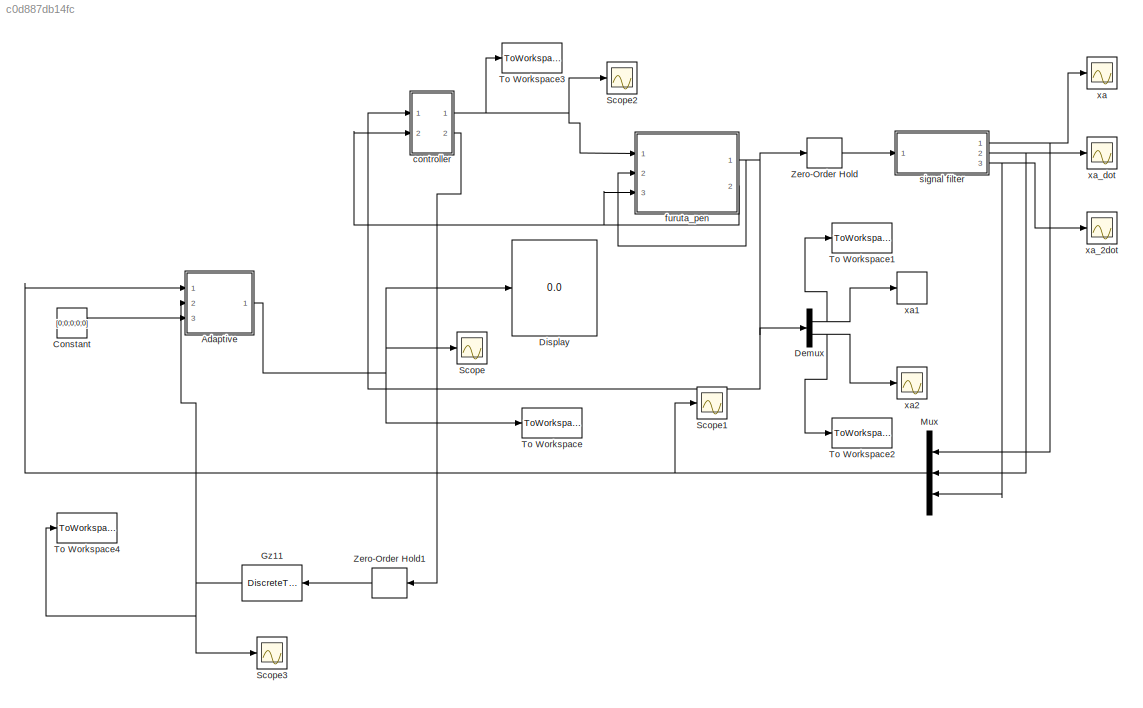
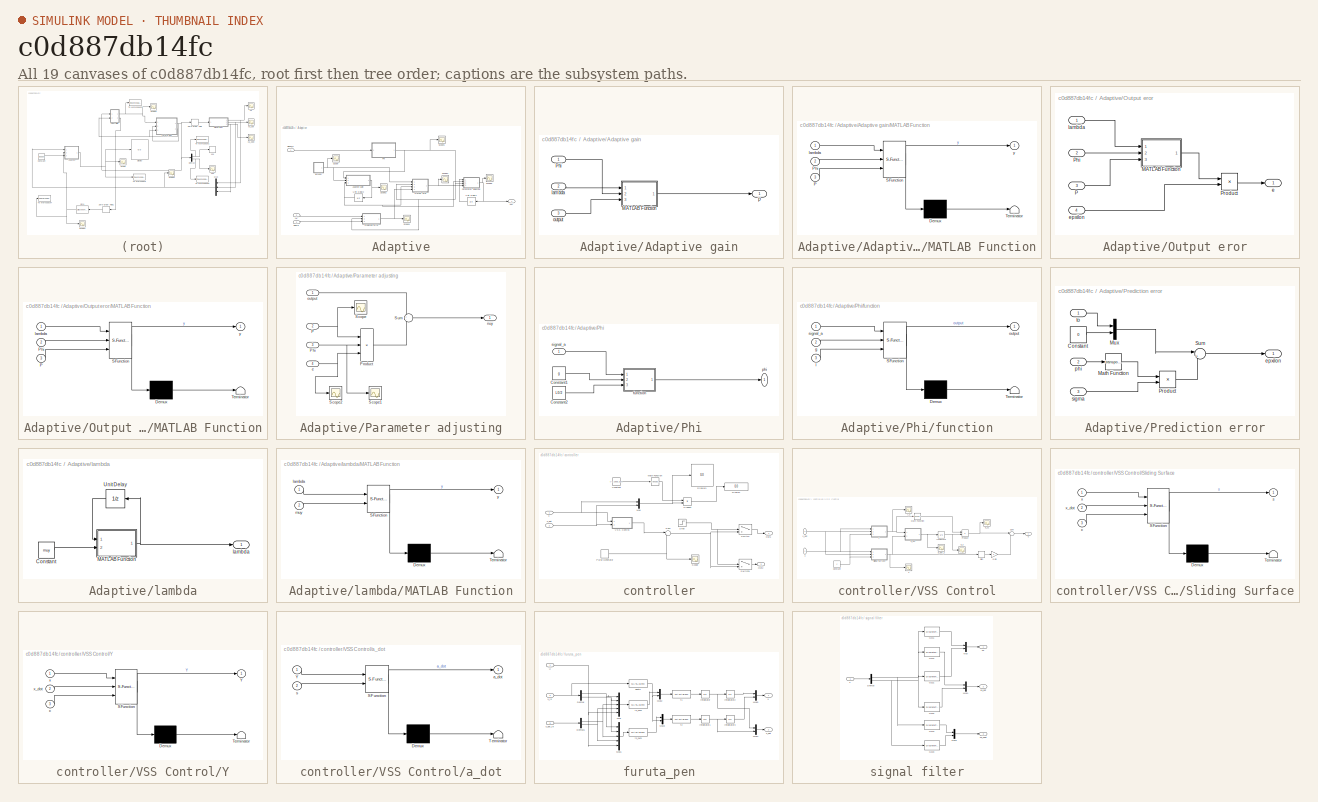
[diagram: thumbnail index - all 19 canvases of the model, root first then tree order]
MODEL slx_c0d887db14fc
KIND model
CONFIG AbsTol = auto
CONFIG FixedStep = 0.001
CONFIG MaxStep = auto
CONFIG MinStep = auto
CONFIG RelTol = 1e-3
CONFIG SampleTimeConstraint = Unconstrained
CONFIG Solver = ode3
CONFIG SolverMode = Auto
CONFIG SolverName = ode3
CONFIG StartTime = 0.0
CONFIG StopTime = 5
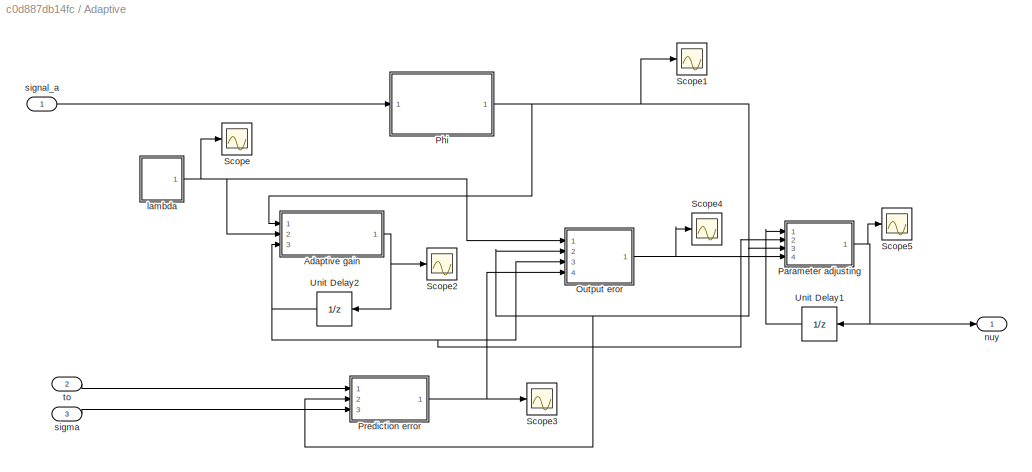
BLOCK [SubSystem] Adaptive
  Ports = [3, 1]
  RequestExecContextInheritance = off
BLOCK [SubSystem] Adaptive/Adaptive gain
  Ports = [3, 1]
  RequestExecContextInheritance = off
BLOCK [SubSystem] Adaptive/Adaptive gain/MATLAB Function
  ErrorFcn = Stateflow.Translate.translate
  PermitHierarchicalResolution = ExplicitOnly
  Ports = [3, 1]
  RequestExecContextInheritance = off
  SFBlockType = MATLAB Function
  TreatAsAtomicUnit = on
BLOCK [Demux] Adaptive/Adaptive gain/MATLAB Function/ Demux 
  Outputs = 1
  Ports = [1, 1]
BLOCK [S-Function] Adaptive/Adaptive gain/MATLAB Function/ SFunction 
  EnableBusSupport = on
  FunctionName = sf_sfun
  PortCounts = [3 2]
  Ports = [3, 2]
  Tag = Stateflow S-Function discrete 3
BLOCK [Terminator] Adaptive/Adaptive gain/MATLAB Function/ Terminator 
BLOCK [Inport] Adaptive/Adaptive gain/MATLAB Function/P
  IconDisplay = Port number
  Port = 3
BLOCK [Inport] Adaptive/Adaptive gain/MATLAB Function/Phi
  IconDisplay = Port number
  Port = 2
BLOCK [Inport] Adaptive/Adaptive gain/MATLAB Function/lambda
  IconDisplay = Port number
BLOCK [Outport] Adaptive/Adaptive gain/MATLAB Function/y
  IconDisplay = Port number
BLOCK [Outport] Adaptive/Adaptive gain/P
  IconDisplay = Port number
BLOCK [Inport] Adaptive/Adaptive gain/Phi
  IconDisplay = Port number
BLOCK [Inport] Adaptive/Adaptive gain/lambda
  IconDisplay = Port number
  Port = 2
BLOCK [Inport] Adaptive/Adaptive gain/output
  IconDisplay = Port number
  Port = 3
BLOCK [SubSystem] Adaptive/Output eror
  Ports = [4, 1]
  RequestExecContextInheritance = off
BLOCK [SubSystem] Adaptive/Output eror/MATLAB Function
  ErrorFcn = Stateflow.Translate.translate
  PermitHierarchicalResolution = ExplicitOnly
  Ports = [3, 1]
  RequestExecContextInheritance = off
  SFBlockType = MATLAB Function
  TreatAsAtomicUnit = on
BLOCK [Demux] Adaptive/Output eror/MATLAB Function/ Demux 
  Outputs = 1
  Ports = [1, 1]
BLOCK [S-Function] Adaptive/Output eror/MATLAB Function/ SFunction 
  EnableBusSupport = on
  FunctionName = sf_sfun
  PortCounts = [3 2]
  Ports = [3, 2]
  Tag = Stateflow S-Function discrete 1
BLOCK [Terminator] Adaptive/Output eror/MATLAB Function/ Terminator 
BLOCK [Inport] Adaptive/Output eror/MATLAB Function/P
  IconDisplay = Port number
  Port = 3
BLOCK [Inport] Adaptive/Output eror/MATLAB Function/Phi
  IconDisplay = Port number
  Port = 2
BLOCK [Inport] Adaptive/Output eror/MATLAB Function/lambda
  IconDisplay = Port number
BLOCK [Outport] Adaptive/Output eror/MATLAB Function/y
  IconDisplay = Port number
BLOCK [Inport] Adaptive/Output eror/P
  IconDisplay = Port number
  Port = 3
BLOCK [Inport] Adaptive/Output eror/Phi
  IconDisplay = Port number
  Port = 2
BLOCK [Product] Adaptive/Output eror/Product
  InputSameDT = off
  OutDataTypeStr = Inherit: Inherit via internal rule
  Ports = [2, 1]
  RndMeth = Floor
  SaturateOnIntegerOverflow = off
BLOCK [Outport] Adaptive/Output eror/e
  IconDisplay = Port number
BLOCK [Inport] Adaptive/Output eror/epxilon
  IconDisplay = Port number
  Port = 4
BLOCK [Inport] Adaptive/Output eror/lambda
  IconDisplay = Port number
BLOCK [SubSystem] Adaptive/Parameter adjusting
  Ports = [4, 1]
  RequestExecContextInheritance = off
BLOCK [Inport] Adaptive/Parameter adjusting/P
  IconDisplay = Port number
  Port = 2
BLOCK [Inport] Adaptive/Parameter adjusting/Phi
  IconDisplay = Port number
  Port = 3
BLOCK [Product] Adaptive/Parameter adjusting/Product
  InputSameDT = off
  Inputs = 3
  Multiplication = Matrix(*)
  OutDataTypeStr = Inherit: Inherit via internal rule
  Ports = [3, 1]
  RndMeth = Floor
  SaturateOnIntegerOverflow = off
BLOCK [Scope] Adaptive/Parameter adjusting/Scope
  Floating = off
  NumInputPorts = 1
  Ports = [1]
  SaveName = ScopeData17
BLOCK [Scope] Adaptive/Parameter adjusting/Scope1
  Floating = off
  NumInputPorts = 1
  Ports = [1]
  SaveName = ScopeData18
  YMax = 2.5
  YMin = -3.5
BLOCK [Scope] Adaptive/Parameter adjusting/Scope2
  Floating = off
  NumInputPorts = 1
  Ports = [1]
  SaveName = ScopeData19
  YMax = 7
  YMin = -4
BLOCK [Sum] Adaptive/Parameter adjusting/Sum
  IconShape = round
  InputSameDT = off
  Inputs = +-
  OutDataTypeStr = Inherit: Inherit via internal rule
  Ports = [2, 1]
  SaturateOnIntegerOverflow = off
BLOCK [Inport] Adaptive/Parameter adjusting/e
  IconDisplay = Port number
  Port = 4
BLOCK [Outport] Adaptive/Parameter adjusting/nuy
  IconDisplay = Port number
BLOCK [Inport] Adaptive/Parameter adjusting/output
  IconDisplay = Port number
BLOCK [SubSystem] Adaptive/Phi
  Ports = [1, 1]
  RequestExecContextInheritance = off
BLOCK [Constant] Adaptive/Phi/Constant1
  Value = g
BLOCK [Constant] Adaptive/Phi/Constant2
  Value = L0/2
BLOCK [SubSystem] Adaptive/Phi/function
  ErrorFcn = Stateflow.Translate.translate
  PermitHierarchicalResolution = ExplicitOnly
  Ports = [3, 1]
  RequestExecContextInheritance = off
  SFBlockType = MATLAB Function
  TreatAsAtomicUnit = on
BLOCK [Demux] Adaptive/Phi/function/ Demux 
  Outputs = 1
  Ports = [1, 1]
BLOCK [S-Function] Adaptive/Phi/function/ SFunction 
  EnableBusSupport = on
  FunctionName = sf_sfun
  PortCounts = [3 2]
  Ports = [3, 2]
  Tag = Stateflow S-Function discrete 2
BLOCK [Terminator] Adaptive/Phi/function/ Terminator 
BLOCK [Inport] Adaptive/Phi/function/g
  IconDisplay = Port number
  Port = 2
BLOCK [Inport] Adaptive/Phi/function/l
  IconDisplay = Port number
  Port = 3
BLOCK [Outport] Adaptive/Phi/function/output
  IconDisplay = Port number
BLOCK [Inport] Adaptive/Phi/function/signal_a
  IconDisplay = Port number
BLOCK [Outport] Adaptive/Phi/phi
  IconDisplay = Port number
BLOCK [Inport] Adaptive/Phi/signal_a
  IconDisplay = Port number
BLOCK [SubSystem] Adaptive/Prediction error
  Ports = [3, 1]
  RequestExecContextInheritance = off
BLOCK [Constant] Adaptive/Prediction error/Constant
  Value = 0
BLOCK [Math] Adaptive/Prediction error/Math Function
  Operator = transpose
  Ports = [1, 1]
BLOCK [Mux] Adaptive/Prediction error/Mux
  DisplayOption = bar
  Inputs = 2
  Ports = [2, 1]
BLOCK [Product] Adaptive/Prediction error/Product
  InputSameDT = off
  Multiplication = Matrix(*)
  OutDataTypeStr = Inherit: Inherit via internal rule
  Ports = [2, 1]
  RndMeth = Floor
  SaturateOnIntegerOverflow = off
BLOCK [Sum] Adaptive/Prediction error/Sum
  IconShape = round
  InputSameDT = off
  Inputs = |+-
  OutDataTypeStr = Inherit: Inherit via internal rule
  Ports = [2, 1]
  SaturateOnIntegerOverflow = off
BLOCK [Outport] Adaptive/Prediction error/epxilon
  IconDisplay = Port number
BLOCK [Inport] Adaptive/Prediction error/phi
  IconDisplay = Port number
  Port = 2
BLOCK [Inport] Adaptive/Prediction error/sigma
  IconDisplay = Port number
  Port = 3
BLOCK [Inport] Adaptive/Prediction error/to
  IconDisplay = Port number
BLOCK [Scope] Adaptive/Scope
  Floating = off
  NumInputPorts = 1
  Ports = [1]
  SaveName = ScopeData10
  YMax = 1
  YMin = 1
BLOCK [Scope] Adaptive/Scope1
  Floating = off
  NumInputPorts = 1
  Ports = [1]
  SaveName = ScopeData11
  TimeRange = 5
BLOCK [Scope] Adaptive/Scope2
  Floating = off
  NumInputPorts = 1
  Ports = [1]
  SaveName = ScopeData13
  YMax = 9.6e-06
  YMin = 8.6e-06
BLOCK [Scope] Adaptive/Scope3
  Floating = off
  NumInputPorts = 1
  Ports = [1]
  SaveName = ScopeData14
BLOCK [Scope] Adaptive/Scope4
  Floating = off
  NumInputPorts = 1
  Ports = [1]
  SaveName = ScopeData15
BLOCK [Scope] Adaptive/Scope5
  Floating = off
  NumInputPorts = 1
  Ports = [1]
  SaveName = ScopeData16
BLOCK [UnitDelay] Adaptive/Unit Delay1
  InitialCondition = [1;1;1;1;1]
  InputProcessing = Elements as channels (sample based)
  SampleTime = 0.001
BLOCK [UnitDelay] Adaptive/Unit Delay2
  InitialCondition = eye(5)
  InputProcessing = Elements as channels (sample based)
  SampleTime = 0.001
BLOCK [SubSystem] Adaptive/lambda
  Ports = [0, 1]
  RequestExecContextInheritance = off
BLOCK [Constant] Adaptive/lambda/Constant
  Value = muy
BLOCK [SubSystem] Adaptive/lambda/MATLAB Function
  ErrorFcn = Stateflow.Translate.translate
  PermitHierarchicalResolution = ExplicitOnly
  Ports = [2, 1]
  RequestExecContextInheritance = off
  SFBlockType = MATLAB Function
  TreatAsAtomicUnit = on
BLOCK [Demux] Adaptive/lambda/MATLAB Function/ Demux 
  Outputs = 1
  Ports = [1, 1]
BLOCK [S-Function] Adaptive/lambda/MATLAB Function/ SFunction 
  EnableBusSupport = on
  FunctionName = sf_sfun
  PortCounts = [2 2]
  Ports = [2, 2]
  Tag = Stateflow S-Function discrete 4
BLOCK [Terminator] Adaptive/lambda/MATLAB Function/ Terminator 
BLOCK [Inport] Adaptive/lambda/MATLAB Function/lambda
  IconDisplay = Port number
BLOCK [Inport] Adaptive/lambda/MATLAB Function/muy
  IconDisplay = Port number
  Port = 2
BLOCK [Outport] Adaptive/lambda/MATLAB Function/y
  IconDisplay = Port number
BLOCK [UnitDelay] Adaptive/lambda/Unit Delay
  InputProcessing = Elements as channels (sample based)
  SampleTime = -1
BLOCK [Outport] Adaptive/lambda/lambda
  IconDisplay = Port number
BLOCK [Outport] Adaptive/nuy
  IconDisplay = Port number
BLOCK [Inport] Adaptive/sigma
  IconDisplay = Port number
  Port = 3
BLOCK [Inport] Adaptive/signal_a
  IconDisplay = Port number
BLOCK [Inport] Adaptive/to
  IconDisplay = Port number
  Port = 2
BLOCK [Constant] Constant
  Value = [0;0;0;0;0]
BLOCK [Demux] Demux
  DisplayOption = bar
  Outputs = 2
  Ports = [1, 2]
BLOCK [Display] Display
  Decimation = 1
  Ports = [1]
BLOCK [DiscreteTransferFcn] Gz11
  Denominator = [1,-2.90163934426229,2.80650362805697,-0.904829038553887]
  InputPortMap = u0
  Numerator = [4.40565509888493e-06,1.32169652966548e-05,1.32169652966548e-05,4.40565509888493e-06]
  Ports = [1, 1]
  SampleTime = 0.001
BLOCK [Mux] Mux
  DisplayOption = bar
  Inputs = 3
  Ports = [3, 1]
BLOCK [Scope] Scope
  Floating = off
  NumInputPorts = 1
  Ports = [1]
  SaveName = ScopeData3
  TimeRange = 5
  YMax = 200000
  YMin = -600000
BLOCK [Scope] Scope1
  Floating = off
  NumInputPorts = 1
  Ports = [1]
  SaveName = ScopeData9
  YMax = 2
  YMin = -6
BLOCK [Scope] Scope2
  Floating = off
  NumInputPorts = 1
  Ports = [1]
  SaveName = ScopeData12
BLOCK [Scope] Scope3
  Floating = off
  NumInputPorts = 1
  Ports = [1]
  SaveName = ScopeData23
BLOCK [ToWorkspace] To Workspace
  FixptAsFi = on
  MaxDataPoints = inf
  Ports = [1]
  SampleTime = -1
  Save2DSignal = 3-D array (concatenate along third dimension)
  SaveFormat = Timeseries
  VariableName = simout
BLOCK [ToWorkspace] To Workspace1
  FixptAsFi = on
  MaxDataPoints = inf
  Ports = [1]
  SampleTime = -1
  Save2DSignal = 3-D array (concatenate along third dimension)
  SaveFormat = Timeseries
  VariableName = theta
BLOCK [ToWorkspace] To Workspace2
  FixptAsFi = on
  MaxDataPoints = inf
  Ports = [1]
  SampleTime = -1
  Save2DSignal = 3-D array (concatenate along third dimension)
  SaveFormat = Timeseries
  VariableName = alpha
BLOCK [ToWorkspace] To Workspace3
  FixptAsFi = on
  MaxDataPoints = inf
  Ports = [1]
  SampleTime = -1
  Save2DSignal = 3-D array (concatenate along third dimension)
  SaveFormat = Timeseries
  VariableName = u
BLOCK [ToWorkspace] To Workspace4
  FixptAsFi = on
  MaxDataPoints = inf
  Ports = [1]
  SampleTime = -1
  Save2DSignal = 3-D array (concatenate along third dimension)
  SaveFormat = Timeseries
  VariableName = ua
BLOCK [ZeroOrderHold] Zero-Order Hold
  SampleTime = 0.001
BLOCK [ZeroOrderHold] Zero-Order Hold1
  SampleTime = 0.001
BLOCK [SubSystem] controller
  Ports = [2, 2]
  RequestExecContextInheritance = off
BLOCK [Constant] controller/Constant
  Value = [-0.2500,20.6329,-0.6179,2.5406]
BLOCK [Display] controller/Display
  Decimation = 1
  Ports = [1]
BLOCK [Display] controller/Display1
  Decimation = 1
  Ports = [1]
BLOCK [Math] controller/Math Function
  Operator = transpose
  Ports = [1, 1]
BLOCK [Mux] controller/Mux
  DisplayOption = bar
  Inputs = 2
  Ports = [2, 1]
BLOCK [Outport] controller/Out1
  IconDisplay = Port number
BLOCK [Outport] controller/Out2
  IconDisplay = Port number
  Port = 2
BLOCK [Product] controller/Product
  InputSameDT = off
  Multiplication = Matrix(*)
  OutDataTypeStr = Inherit: Inherit via internal rule
  Ports = [2, 1]
  RndMeth = Floor
  SaturateOnIntegerOverflow = off
BLOCK [DiscretePulseGenerator] controller/Pulse Generator
  Amplitude = 0
  Period = 1
  Ports = [0, 1]
  PulseType = Time based
  PulseWidth = 5
BLOCK [Scope] controller/Scope
  Floating = off
  NumInputPorts = 1
  Ports = [1]
  SaveName = ScopeData22
BLOCK [Step] controller/Step
  SampleTime = 0
  Time = 6
BLOCK [Sum] controller/Sum
  IconShape = round
  InputSameDT = off
  Inputs = |++
  OutDataTypeStr = Inherit: Inherit via internal rule
  Ports = [2, 1]
  SaturateOnIntegerOverflow = off
BLOCK [Switch] controller/Switch
  Criteria = u2 > Threshold
  InputSameDT = off
  SaturateOnIntegerOverflow = off
BLOCK [Switch] controller/Switch1
  Criteria = u2 > Threshold
  InputSameDT = off
  SaturateOnIntegerOverflow = off
BLOCK [SubSystem] controller/VSS Control
  Ports = [2, 1]
  RequestExecContextInheritance = off
BLOCK [Constant] controller/VSS Control/Constant
  Value = c
BLOCK [Gain] controller/VSS Control/Gain
  Gain = k
  OutDataTypeStr = Inherit: Inherit via internal rule
  ParamDataTypeStr = Inherit: Inherit via internal rule
  SaturateOnIntegerOverflow = off
BLOCK [Integrator] controller/VSS Control/Integrator
  InitialCondition = [0.5;0.5;0.5;0.5]
  Ports = [1, 1]
BLOCK [Math] controller/VSS Control/Math Function
  Operator = transpose
  Ports = [1, 1]
BLOCK [Product] controller/VSS Control/Product
  InputSameDT = off
  Multiplication = Matrix(*)
  OutDataTypeStr = Inherit: Inherit via internal rule
  Ports = [2, 1]
  RndMeth = Floor
  SaturateOnIntegerOverflow = off
BLOCK [Signum] controller/VSS Control/Sign
BLOCK [SubSystem] controller/VSS Control/Sliding Surface
  ErrorFcn = Stateflow.Translate.translate
  PermitHierarchicalResolution = ExplicitOnly
  Ports = [3, 1]
  RequestExecContextInheritance = off
  SFBlockType = MATLAB Function
  TreatAsAtomicUnit = on
BLOCK [Demux] controller/VSS Control/Sliding Surface/ Demux 
  Outputs = 1
  Ports = [1, 1]
BLOCK [S-Function] controller/VSS Control/Sliding Surface/ SFunction 
  EnableBusSupport = on
  FunctionName = sf_sfun
  PortCounts = [3 2]
  Ports = [3, 2]
  Tag = Stateflow S-Function discrete 5
BLOCK [Terminator] controller/VSS Control/Sliding Surface/ Terminator 
BLOCK [Inport] controller/VSS Control/Sliding Surface/c
  IconDisplay = Port number
  Port = 3
BLOCK [Outport] controller/VSS Control/Sliding Surface/s
  IconDisplay = Port number
BLOCK [Inport] controller/VSS Control/Sliding Surface/x
  IconDisplay = Port number
BLOCK [Inport] controller/VSS Control/Sliding Surface/x_dot
  IconDisplay = Port number
  Port = 2
BLOCK [Sum] controller/VSS Control/Sum
  IconShape = round
  InputSameDT = off
  Inputs = |+-
  OutDataTypeStr = Inherit: Inherit via internal rule
  Ports = [2, 1]
  SaturateOnIntegerOverflow = off
BLOCK [SubSystem] controller/VSS Control/Y
  ErrorFcn = Stateflow.Translate.translate
  PermitHierarchicalResolution = ExplicitOnly
  Ports = [3, 1]
  RequestExecContextInheritance = off
  SFBlockType = MATLAB Function
  TreatAsAtomicUnit = on
BLOCK [Demux] controller/VSS Control/Y/ Demux 
  Outputs = 1
  Ports = [1, 1]
BLOCK [S-Function] controller/VSS Control/Y/ SFunction 
  EnableBusSupport = on
  FunctionName = sf_sfun
  PortCounts = [3 2]
  Ports = [3, 2]
  Tag = Stateflow S-Function discrete 6
BLOCK [Terminator] controller/VSS Control/Y/ Terminator 
BLOCK [Outport] controller/VSS Control/Y/Y
  IconDisplay = Port number
BLOCK [Inport] controller/VSS Control/Y/c
  IconDisplay = Port number
  Port = 3
BLOCK [Inport] controller/VSS Control/Y/x
  IconDisplay = Port number
BLOCK [Inport] controller/VSS Control/Y/x_dot
  IconDisplay = Port number
  Port = 2
BLOCK [SubSystem] controller/VSS Control/a_dot
  ErrorFcn = Stateflow.Translate.translate
  PermitHierarchicalResolution = ExplicitOnly
  Ports = [2, 1]
  RequestExecContextInheritance = off
  SFBlockType = MATLAB Function
  TreatAsAtomicUnit = on
BLOCK [Demux] controller/VSS Control/a_dot/ Demux 
  Outputs = 1
  Ports = [1, 1]
BLOCK [S-Function] controller/VSS Control/a_dot/ SFunction 
  EnableBusSupport = on
  FunctionName = sf_sfun
  PortCounts = [2 2]
  Ports = [2, 2]
  Tag = Stateflow S-Function discrete 7
BLOCK [Terminator] controller/VSS Control/a_dot/ Terminator 
BLOCK [Inport] controller/VSS Control/a_dot/Y
  IconDisplay = Port number
BLOCK [Outport] controller/VSS Control/a_dot/a_dot
  IconDisplay = Port number
BLOCK [Inport] controller/VSS Control/a_dot/s
  IconDisplay = Port number
  Port = 2
BLOCK [Scope] controller/VSS Control/a_dot_s
  Floating = off
  LimitDataPoints = off
  NumInputPorts = 1
  Ports = [1]
  SaveName = ScopeData6
  YMax = 0.175
  YMin = -0.175
BLOCK [Scope] controller/VSS Control/a_s
  Floating = off
  LimitDataPoints = off
  NumInputPorts = 1
  Ports = [1]
  SaveName = ScopeData7
  YMax = 0.504
  YMin = 0.491
BLOCK [Scope] controller/VSS Control/a_s1
  Floating = off
  LimitDataPoints = off
  NumInputPorts = 1
  Ports = [1]
  SaveName = ScopeData8
  YMax = 0.504
  YMin = 0.491
BLOCK [Scope] controller/VSS Control/s
  Floating = off
  LimitDataPoints = off
  NumInputPorts = 1
  Ports = [1]
  SaveName = ScopeData5
  YMax = 0.175
  YMin = -0.175
BLOCK [Outport] controller/VSS Control/u
  IconDisplay = Port number
BLOCK [Inport] controller/VSS Control/x
  IconDisplay = Port number
BLOCK [Inport] controller/VSS Control/x_dot
  IconDisplay = Port number
  Port = 2
BLOCK [Scope] controller/VSS Control/y_s
  Floating = off
  LimitDataPoints = off
  NumInputPorts = 1
  Ports = [1]
  SaveName = ScopeData4
  YMax = 0.175
  YMin = -0.175
  ZoomMode = yonly
BLOCK [Inport] controller/x
  IconDisplay = Port number
BLOCK [Inport] controller/x_dot
  IconDisplay = Port number
  Port = 2
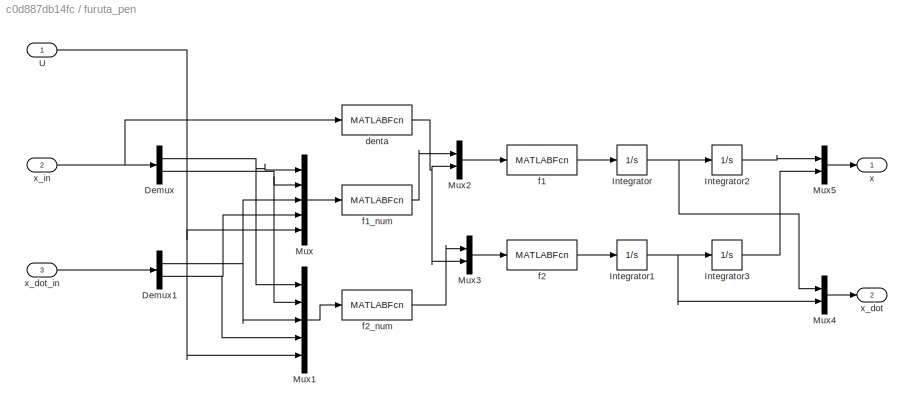
BLOCK [SubSystem] furuta_pen
  Ports = [3, 2]
  RequestExecContextInheritance = off
BLOCK [Demux] furuta_pen/Demux
  DisplayOption = bar
  Outputs = 2
  Ports = [1, 2]
BLOCK [Demux] furuta_pen/Demux1
  DisplayOption = bar
  Outputs = 2
  Ports = [1, 2]
BLOCK [Integrator] furuta_pen/Integrator
  Ports = [1, 1]
BLOCK [Integrator] furuta_pen/Integrator1
  Ports = [1, 1]
BLOCK [Integrator] furuta_pen/Integrator2
  InitialCondition = theta_0*pi/180
  Ports = [1, 1]
BLOCK [Integrator] furuta_pen/Integrator3
  InitialCondition = anpha_0/180*pi
  Ports = [1, 1]
BLOCK [Mux] furuta_pen/Mux
  DisplayOption = bar
  Inputs = 5
  Ports = [5, 1]
BLOCK [Mux] furuta_pen/Mux1
  DisplayOption = bar
  Inputs = 5
  Ports = [5, 1]
BLOCK [Mux] furuta_pen/Mux2
  DisplayOption = bar
  Inputs = 2
  Ports = [2, 1]
BLOCK [Mux] furuta_pen/Mux3
  DisplayOption = bar
  Inputs = 2
  Ports = [2, 1]
BLOCK [Mux] furuta_pen/Mux4
  DisplayOption = bar
  Inputs = 2
  Ports = [2, 1]
BLOCK [Mux] furuta_pen/Mux5
  DisplayOption = bar
  Inputs = 2
  Ports = [2, 1]
BLOCK [Inport] furuta_pen/U
  IconDisplay = Port number
BLOCK [MATLABFcn] furuta_pen/denta
  MATLABFcn = J0*J1+m1^2*L1^4*sin(u(2))^2+m1^2*L0^2*L1^2+J0*m1*L1^2+J1*m1*L0^2+J1*m1*L1^2*sin(u(2))^2-m1^2*L0^2*L1^2*cos(u(2))^2
  OutputDimensions = 1
  Ports = [1, 1]
BLOCK [MATLABFcn] furuta_pen/f1
  MATLABFcn = u(1)/u(2)
  OutputDimensions = 1
  Ports = [1, 1]
BLOCK [MATLABFcn] furuta_pen/f1_num
  MATLABFcn = m1*L0*L1*cos(u(2))*(0.5*m1*L1^2*sin(2*u(2))*u(3)^2+m1*g*L1*sin(u(2))-beta1*u(4))-(m1*L1^2+J1)*(m1*L1^2*sin(2*u(2))*u(3)*u(4)+m1*L0*L1*sin(u(2))*u(4)^2-u(5)+beta0*u(3))
  OutputDimensions = 1
  Ports = [1, 1]
BLOCK [MATLABFcn] furuta_pen/f2
  MATLABFcn = u(1)/u(2)
  OutputDimensions = 1
  Ports = [1, 1]
BLOCK [MATLABFcn] furuta_pen/f2_num
  MATLABFcn = (m1*L0^2+m1*L1^2*sin(u(2))^2+J0)*(0.5*m1*L1^2*sin(2*u(2))*u(3)^2+m1*g*L1*sin(u(2))-beta1*u(4))-m1*L0*L1*cos(u(2))*(m1*L1^2*sin(2*u(2))*u(3)*u(4)+m1*L0*L1*sin(u(2))*u(4)^2-u(5)+beta0*u(3))
  OutputDimensions = 1
  Ports = [1, 1]
BLOCK [Outport] furuta_pen/x
  IconDisplay = Port number
BLOCK [Outport] furuta_pen/x_dot
  IconDisplay = Port number
  Port = 2
BLOCK [Inport] furuta_pen/x_dot_in
  IconDisplay = Port number
  Port = 3
BLOCK [Inport] furuta_pen/x_in
  IconDisplay = Port number
  Port = 2
BLOCK [SubSystem] signal filter
  Ports = [1, 3]
  RequestExecContextInheritance = off
BLOCK [Demux] signal filter/Demux
  DisplayOption = bar
  Outputs = 2
  Ports = [1, 2]
BLOCK [DiscreteTransferFcn] signal filter/Gz11
  Denominator = [1,-2.90163934426229,2.80650362805697,-0.904829038553887]
  InputPortMap = u0
  Numerator = [4.40565509888493e-06,1.32169652966548e-05,1.32169652966548e-05,4.40565509888493e-06]
  Ports = [1, 1]
  SampleTime = 0.001
BLOCK [DiscreteTransferFcn] signal filter/Gz12
  Denominator = [1,-2.90163934426229,2.80650362805697,-0.904829038553887]
  InputPortMap = u0
  Numerator = [0.00881131019776986,0.00881131019776986,-0.00881131019776986,-0.00881131019776986]
  Ports = [1, 1]
  SampleTime = 0.001
BLOCK [DiscreteTransferFcn] signal filter/Gz13
  Denominator = [1,-2.90163934426229,2.80650362805697,-0.904829038553887]
  InputPortMap = u0
  Numerator = [17.6226203955397,-17.6226203955397,-17.6226203955397,17.6226203955397]
  Ports = [1, 1]
  SampleTime = 0.001
BLOCK [DiscreteTransferFcn] signal filter/Gz21
  Denominator = [1,-2.90163934426229,2.80650362805697,-0.904829038553887]
  InputPortMap = u0
  Numerator = [4.40565509888493e-06,1.32169652966548e-05,1.32169652966548e-05,4.40565509888493e-06]
  Ports = [1, 1]
  SampleTime = 0.001
BLOCK [DiscreteTransferFcn] signal filter/Gz22
  Denominator = [1,-2.90163934426229,2.80650362805697,-0.904829038553887]
  InputPortMap = u0
  Numerator = [0.00881131019776986,0.00881131019776986,-0.00881131019776986,-0.00881131019776986]
  Ports = [1, 1]
  SampleTime = 0.001
BLOCK [DiscreteTransferFcn] signal filter/Gz23
  Denominator = [1,-2.90163934426229,2.80650362805697,-0.904829038553887]
  InputPortMap = u0
  Numerator = [17.6226203955397,-17.6226203955397,-17.6226203955397,17.6226203955397]
  Ports = [1, 1]
  SampleTime = 0.001
BLOCK [Mux] signal filter/Mux
  DisplayOption = bar
  Inputs = 2
  Ports = [2, 1]
BLOCK [Mux] signal filter/Mux1
  DisplayOption = bar
  Inputs = 2
  Ports = [2, 1]
BLOCK [Mux] signal filter/Mux2
  DisplayOption = bar
  Inputs = 2
  Ports = [2, 1]
BLOCK [Inport] signal filter/x
  IconDisplay = Port number
BLOCK [Outport] signal filter/xa
  IconDisplay = Port number
BLOCK [Outport] signal filter/xa_2dot
  IconDisplay = Port number
  Port = 3
BLOCK [Outport] signal filter/xa_dot
  IconDisplay = Port number
  Port = 2
BLOCK [Scope] xa
  Floating = off
  LimitDataPoints = off
  NumInputPorts = 1
  Ports = [1]
  TimeRange = 5
  YMax = 32.5
  YMin = 0
BLOCK [TimeScope] xa1
  NumInputPorts = 1
  Ports = [1]
  ScopeSpecificationString = Simulink.scopes.TimeScopeBlockCfg('CurrentConfiguration', extmgr.ConfigurationSet(extmgr.Configuration('Core','General UI',true),extmgr.Configuration('Core','Source UI',true),extmgr.Configuration('Sources','WiredSimulink',true,'DataLoggingVariableName','ScopeData20','DataLoggingDecimation','1','DataLoggingDecimateData',true,'DataLoggingSaveFormat','Array'),extmgr.Configuration('Visuals','Time Doma...<+1692ch>
BLOCK [Scope] xa2
  Floating = off
  LimitDataPoints = off
  NumInputPorts = 1
  Ports = [1]
  SaveName = ScopeData21
  TimeRange = 5
  YMax = 0.04
  YMin = -0.065
BLOCK [Scope] xa_2dot
  Floating = off
  LimitDataPoints = off
  NumInputPorts = 1
  Ports = [1]
  SaveName = ScopeData2
  TimeRange = 5
  YMax = 0.25
  YMin = -0.15
BLOCK [Scope] xa_dot
  Floating = off
  LimitDataPoints = off
  NumInputPorts = 1
  Ports = [1]
  SaveName = ScopeData1
  TimeRange = 5
  YMax = 0.1
  YMin = -1.9
LINE Adaptive/Adaptive gain/MATLAB Function:1 -> Adaptive/Adaptive gain/P:1
LINE Adaptive/Adaptive gain/Phi:1 -> Adaptive/Adaptive gain/MATLAB Function:2
LINE Adaptive/Adaptive gain/lambda:1 -> Adaptive/Adaptive gain/MATLAB Function:1
LINE Adaptive/Adaptive gain/output:1 -> Adaptive/Adaptive gain/MATLAB Function:3
NET Adaptive/Adaptive gain:1 -> Adaptive/Scope2:1, Adaptive/Unit Delay2:1
LINE Adaptive/Output eror/MATLAB Function:1 -> Adaptive/Output eror/Product:1
LINE Adaptive/Output eror/P:1 -> Adaptive/Output eror/MATLAB Function:3
LINE Adaptive/Output eror/Phi:1 -> Adaptive/Output eror/MATLAB Function:2
LINE Adaptive/Output eror/Product:1 -> Adaptive/Output eror/e:1
LINE Adaptive/Output eror/epxilon:1 -> Adaptive/Output eror/Product:2
LINE Adaptive/Output eror/lambda:1 -> Adaptive/Output eror/MATLAB Function:1
NET Adaptive/Output eror:1 -> Adaptive/Parameter adjusting:4, Adaptive/Scope4:1
NET Adaptive/Parameter adjusting/P:1 -> Adaptive/Parameter adjusting/Product:1, Adaptive/Parameter adjusting/Scope:1
NET Adaptive/Parameter adjusting/Phi:1 -> Adaptive/Parameter adjusting/Product:2, Adaptive/Parameter adjusting/Scope1:1
LINE Adaptive/Parameter adjusting/Product:1 -> Adaptive/Parameter adjusting/Sum:2
LINE Adaptive/Parameter adjusting/Sum:1 -> Adaptive/Parameter adjusting/nuy:1
NET Adaptive/Parameter adjusting/e:1 -> Adaptive/Parameter adjusting/Product:3, Adaptive/Parameter adjusting/Scope2:1
LINE Adaptive/Parameter adjusting/output:1 -> Adaptive/Parameter adjusting/Sum:1
NET Adaptive/Parameter adjusting:1 -> Adaptive/Scope5:1, Adaptive/Unit Delay1:1, Adaptive/nuy:1
LINE Adaptive/Phi/Constant1:1 -> Adaptive/Phi/function:2
LINE Adaptive/Phi/Constant2:1 -> Adaptive/Phi/function:3
LINE Adaptive/Phi/function:1 -> Adaptive/Phi/phi:1
LINE Adaptive/Phi/signal_a:1 -> Adaptive/Phi/function:1
NET Adaptive/Phi:1 -> Adaptive/Adaptive gain:1, Adaptive/Output eror:2, Adaptive/Parameter adjusting:3, Adaptive/Prediction error:2, Adaptive/Scope1:1
LINE Adaptive/Prediction error/Constant:1 -> Adaptive/Prediction error/Mux:2
LINE Adaptive/Prediction error/Math Function:1 -> Adaptive/Prediction error/Product:1
LINE Adaptive/Prediction error/Mux:1 -> Adaptive/Prediction error/Sum:1
LINE Adaptive/Prediction error/Product:1 -> Adaptive/Prediction error/Sum:2
LINE Adaptive/Prediction error/Sum:1 -> Adaptive/Prediction error/epxilon:1
LINE Adaptive/Prediction error/phi:1 -> Adaptive/Prediction error/Math Function:1
LINE Adaptive/Prediction error/sigma:1 -> Adaptive/Prediction error/Product:2
LINE Adaptive/Prediction error/to:1 -> Adaptive/Prediction error/Mux:1
NET Adaptive/Prediction error:1 -> Adaptive/Output eror:4, Adaptive/Scope3:1
LINE Adaptive/Unit Delay1:1 -> Adaptive/Parameter adjusting:1
NET Adaptive/Unit Delay2:1 -> Adaptive/Adaptive gain:3, Adaptive/Output eror:3, Adaptive/Parameter adjusting:2
LINE Adaptive/lambda/Constant:1 -> Adaptive/lambda/MATLAB Function:2
NET Adaptive/lambda/MATLAB Function:1 -> Adaptive/lambda/Unit Delay:1, Adaptive/lambda/lambda:1
LINE Adaptive/lambda/Unit Delay:1 -> Adaptive/lambda/MATLAB Function:1
NET Adaptive/lambda:1 -> Adaptive/Adaptive gain:2, Adaptive/Output eror:1, Adaptive/Scope:1
LINE Adaptive/sigma:1 -> Adaptive/Prediction error:3
LINE Adaptive/signal_a:1 -> Adaptive/Phi:1
LINE Adaptive/to:1 -> Adaptive/Prediction error:1
NET Adaptive:1 -> Display:1, Scope:1, To Workspace:1
LINE Constant:1 -> Adaptive:3
NET Demux:1 -> To Workspace1:1, xa1:1
NET Demux:2 -> To Workspace2:1, xa2:1
NET Gz11:1 -> Adaptive:2, Scope3:1, To Workspace4:1
NET Mux:1 -> Adaptive:1, Scope1:1
LINE Zero-Order Hold1:1 -> Gz11:1
LINE Zero-Order Hold:1 -> signal filter:1
LINE controller/Constant:1 -> controller/Math Function:1
LINE controller/Math Function:1 -> controller/Product:1
NET controller/Mux:1 -> controller/Display1:1, controller/Product:2
LINE controller/Product:1 -> controller/Display:1
NET controller/Pulse Generator:1 -> controller/Scope:1, controller/Sum:2
NET controller/Step:1 -> controller/Switch1:2, controller/Switch:2
NET controller/Sum:1 -> controller/Switch1:3, controller/Switch:3
LINE controller/Switch1:1 -> controller/Out2:1
LINE controller/Switch:1 -> controller/Out1:1
NET controller/VSS Control/Constant:1 -> controller/VSS Control/Sliding Surface:3, controller/VSS Control/Y:3
LINE controller/VSS Control/Gain:1 -> controller/VSS Control/Sum:2
NET controller/VSS Control/Integrator:1 -> controller/VSS Control/Product:2, controller/VSS Control/a_s:1
LINE controller/VSS Control/Math Function:1 -> controller/VSS Control/Product:1
NET controller/VSS Control/Product:1 -> controller/VSS Control/Sum:1, controller/VSS Control/a_s1:1
LINE controller/VSS Control/Sign:1 -> controller/VSS Control/Gain:1
NET controller/VSS Control/Sliding Surface:1 -> controller/VSS Control/Sign:1, controller/VSS Control/a_dot:2, controller/VSS Control/s:1
LINE controller/VSS Control/Sum:1 -> controller/VSS Control/u:1
NET controller/VSS Control/Y:1 -> controller/VSS Control/Math Function:1, controller/VSS Control/a_dot:1, controller/VSS Control/y_s:1
NET controller/VSS Control/a_dot:1 -> controller/VSS Control/Integrator:1, controller/VSS Control/a_dot_s:1
NET controller/VSS Control/x:1 -> controller/VSS Control/Sliding Surface:1, controller/VSS Control/Y:1
NET controller/VSS Control/x_dot:1 -> controller/VSS Control/Sliding Surface:2, controller/VSS Control/Y:2
LINE controller/VSS Control:1 -> controller/Sum:1
NET controller/x:1 -> controller/Mux:1, controller/VSS Control:1
NET controller/x_dot:1 -> controller/Mux:2, controller/VSS Control:2
NET controller:1 -> Scope2:1, To Workspace3:1, furuta_pen:1
LINE controller:2 -> Zero-Order Hold1:1
NET furuta_pen/Demux1:1 -> furuta_pen/Mux1:3, furuta_pen/Mux:3
NET furuta_pen/Demux1:2 -> furuta_pen/Mux1:4, furuta_pen/Mux:4
NET furuta_pen/Demux:1 -> furuta_pen/Mux1:1, furuta_pen/Mux:1
NET furuta_pen/Demux:2 -> furuta_pen/Mux1:2, furuta_pen/Mux:2
NET furuta_pen/Integrator1:1 -> furuta_pen/Integrator3:1, furuta_pen/Mux4:2
LINE furuta_pen/Integrator2:1 -> furuta_pen/Mux5:1
LINE furuta_pen/Integrator3:1 -> furuta_pen/Mux5:2
NET furuta_pen/Integrator:1 -> furuta_pen/Integrator2:1, furuta_pen/Mux4:1
LINE furuta_pen/Mux1:1 -> furuta_pen/f2_num:1
LINE furuta_pen/Mux2:1 -> furuta_pen/f1:1
LINE furuta_pen/Mux3:1 -> furuta_pen/f2:1
LINE furuta_pen/Mux4:1 -> furuta_pen/x_dot:1
LINE furuta_pen/Mux5:1 -> furuta_pen/x:1
LINE furuta_pen/Mux:1 -> furuta_pen/f1_num:1
NET furuta_pen/U:1 -> furuta_pen/Mux1:5, furuta_pen/Mux:5
NET furuta_pen/denta:1 -> furuta_pen/Mux2:2, furuta_pen/Mux3:2
LINE furuta_pen/f1:1 -> furuta_pen/Integrator:1
LINE furuta_pen/f1_num:1 -> furuta_pen/Mux2:1
LINE furuta_pen/f2:1 -> furuta_pen/Integrator1:1
LINE furuta_pen/f2_num:1 -> furuta_pen/Mux3:1
LINE furuta_pen/x_dot_in:1 -> furuta_pen/Demux1:1
NET furuta_pen/x_in:1 -> furuta_pen/Demux:1, furuta_pen/denta:1
NET furuta_pen:1 -> Demux:1, Zero-Order Hold:1, controller:1, furuta_pen:2
NET furuta_pen:2 -> controller:2, furuta_pen:3
NET signal filter/Demux:1 -> signal filter/Gz11:1, signal filter/Gz12:1, signal filter/Gz13:1
NET signal filter/Demux:2 -> signal filter/Gz21:1, signal filter/Gz22:1, signal filter/Gz23:1
LINE signal filter/Gz11:1 -> signal filter/Mux:1
LINE signal filter/Gz12:1 -> signal filter/Mux1:1
LINE signal filter/Gz13:1 -> signal filter/Mux2:1
LINE signal filter/Gz21:1 -> signal filter/Mux:2
LINE signal filter/Gz22:1 -> signal filter/Mux1:2
LINE signal filter/Gz23:1 -> signal filter/Mux2:2
LINE signal filter/Mux1:1 -> signal filter/xa_dot:1
LINE signal filter/Mux2:1 -> signal filter/xa_2dot:1
LINE signal filter/Mux:1 -> signal filter/xa:1
LINE signal filter/x:1 -> signal filter/Demux:1
NET signal filter:1 -> Mux:1, xa:1
NET signal filter:2 -> Mux:2, xa_dot:1
NET signal filter:3 -> Mux:3, xa_2dot:1
note: NET lines group one-source signal fan-out (src -> all destinations, sorted); 1:1 wires keep LINE
CHART Adaptive/Output eror/MATLAB Function states=1 transitions=1
  STATE_LABEL 'eML_blk_kernel()'
  STATE_LABEL "SCRIPT:\nfunction y = fcn(lambda, Phi, P)\n%#codegen\nden = lambda + trace(Phi'*P*Phi);\ny = 1/den;"
CHART Adaptive/Phi/function states=1 transitions=1
  STATE_LABEL 'eML_blk_kernel()'
  STATE_LABEL 'SCRIPT:\nfunction output = fcn(signal_a,g,l)\n%#codegen\ntheta = signal_a(1:2);\nthetaDot = signal_a(3:4);\ntheta2Dot = signal_a(5:6);\n\noutput = [theta2Dot(1),sin(theta(2))^2*theta2Dot(1)+sin(2*theta(2))*thetaDot(1)*thetaDot(2),l*(sin(theta(2))*thetaDot(2)^2-cos(theta(2))*theta2Dot(2)),thetaDot(1),0;\n    0,theta2Dot(2)-sin(theta(2))*cos(theta(2))*thetaDot(1)^2,-l*cos(theta(2))*theta2Dot(1)-g*sin(theta(...<+21ch>'
CHART Adaptive/Adaptive gain/MATLAB Function states=1 transitions=1
  STATE_LABEL 'eML_blk_kernel()'
  STATE_LABEL "SCRIPT:\nfunction y = fcn(lambda, Phi, P)\n%#codegen\nnum = P*Phi*Phi'*P;\nden = lambda + trace(Phi'*P*Phi);\ny = 1/lambda*(P-num/den);"
CHART Adaptive/lambda/MATLAB Function states=1 transitions=1
  STATE_LABEL 'eML_blk_kernel()'
  STATE_LABEL 'SCRIPT:\nfunction y = fcn(lambda,muy)\n%#codegen\n\ny = (1-muy)*lambda+muy;'
CHART controller/VSS Control/Sliding Surface states=1 transitions=1
  STATE_LABEL 'eML_blk_kernel()'
  STATE_LABEL 'SCRIPT:\nfunction s = fcn(x,x_dot,c)\n%#codegen\ns = x_dot(2)+c*x(2);'
CHART controller/VSS Control/Y states=1 transitions=1
  STATE_LABEL 'eML_blk_kernel()'
  STATE_LABEL 'SCRIPT:\nfunction Y = fnc(x,x_dot,c)\n%#codegen\n\nY = [-c*x_dot(2);x_dot(2);x(2);x_dot(1)];'
CHART controller/VSS Control/a_dot states=1 transitions=1
  STATE_LABEL 'eML_blk_kernel()'
  STATE_LABEL 'SCRIPT:\nfunction a_dot = fnc(Y,s)\n%#codegen\nro = 100*eye(4);\na_dot = -ro^(-1)*Y*s;'
